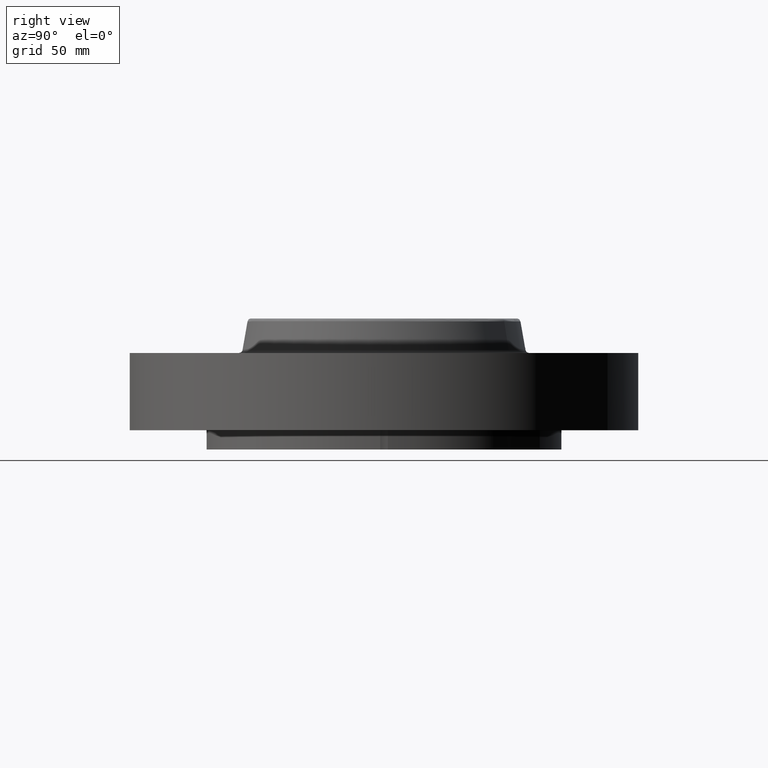
[diagram: clean part render]
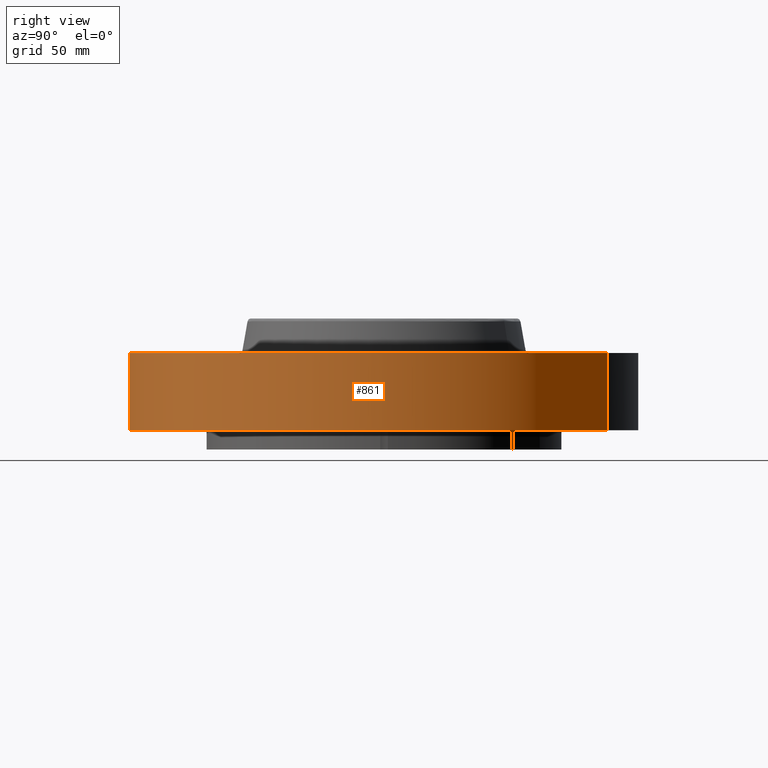
[diagram: same view with one face highlighted and labeled with its STEP entity id]
A machine part, right view. The second image highlights one B-rep face of the part: STEP entity #861.
In plain terms, the highlighted cylindrical surface (partial cylindrical patch) has radius 104.775 mm, axis along (0, 0, -1).
Its self-contained STEP definition (entity closure, byte-faithful):
#623=AXIS2_PLACEMENT_3D('Circle Axis2P3D',#621,#622,$) ;
#822=AXIS2_PLACEMENT_3D('Cylinder Axis2P3D',#819,#820,#821) ;
#852=AXIS2_PLACEMENT_3D('Circle Axis2P3D',#850,#851,$) ;
#616=CARTESIAN_POINT('Vertex',(-1.97763034675,-3.62002806781,5.59482469102E-016)) ;
#618=CARTESIAN_POINT('Vertex',(1.97763034675,3.62002806781,5.59482469102E-016)) ;
#621=CARTESIAN_POINT('Axis2P3D Location',(0.,0.,0.)) ;
#819=CARTESIAN_POINT('Axis2P3D Location',(0.,0.,0.748500000003)) ;
#824=CARTESIAN_POINT('Line Origine',(-1.97763034675,-3.62002806781,0.625000000003)) ;
#828=CARTESIAN_POINT('Vertex',(-1.97763034675,-3.62002806781,1.25000000001)) ;
#835=CARTESIAN_POINT('Vertex',(1.97763034675,3.62002806781,1.25000000001)) ;
#838=CARTESIAN_POINT('Line Origine',(1.97763034675,3.62002806781,0.625000000003)) ;
#850=CARTESIAN_POINT('Axis2P3D Location',(0.,0.,1.25000000001)) ;
#622=DIRECTION('Axis2P3D Direction',(0.,0.,-0.0393700787402)) ;
#820=DIRECTION('Axis2P3D Direction',(0.,0.,-0.0393700787402)) ;
#821=DIRECTION('Axis2P3D XDirection',(0.0188750212049,0.0345504945626,0.)) ;
#825=DIRECTION('Vector Direction',(0.,0.,-0.0393700787402)) ;
#839=DIRECTION('Vector Direction',(0.,0.,-0.0393700787402)) ;
#851=DIRECTION('Axis2P3D Direction',(0.,0.,-0.0393700787402)) ;
#826=VECTOR('Line Direction',#825,0.0393700787402) ;
#840=VECTOR('Line Direction',#839,0.0393700787402) ;
#856=ORIENTED_EDGE('',*,*,#625,.F.) ;
#857=ORIENTED_EDGE('',*,*,#842,.T.) ;
#858=ORIENTED_EDGE('',*,*,#854,.T.) ;
#859=ORIENTED_EDGE('',*,*,#830,.F.) ;
#861=ADVANCED_FACE('PartBody',(#860),#823,.T.) ;
#624=CIRCLE('generated circle',#623,4.12500000002) ;
#853=CIRCLE('generated circle',#852,4.12500000002) ;
#823=CYLINDRICAL_SURFACE('generated cylinder',#822,4.12500000002) ;
#625=EDGE_CURVE('',#619,#617,#624,.T.) ;
#830=EDGE_CURVE('',#617,#829,#827,.F.) ;
#842=EDGE_CURVE('',#619,#836,#841,.F.) ;
#854=EDGE_CURVE('',#836,#829,#853,.T.) ;
#855=EDGE_LOOP('',(#856,#857,#858,#859)) ;
#860=FACE_OUTER_BOUND('',#855,.T.) ;
#827=LINE('Line',#824,#826) ;
#841=LINE('Line',#838,#840) ;
#617=VERTEX_POINT('',#616) ;
#619=VERTEX_POINT('',#618) ;
#829=VERTEX_POINT('',#828) ;
#836=VERTEX_POINT('',#835) ;